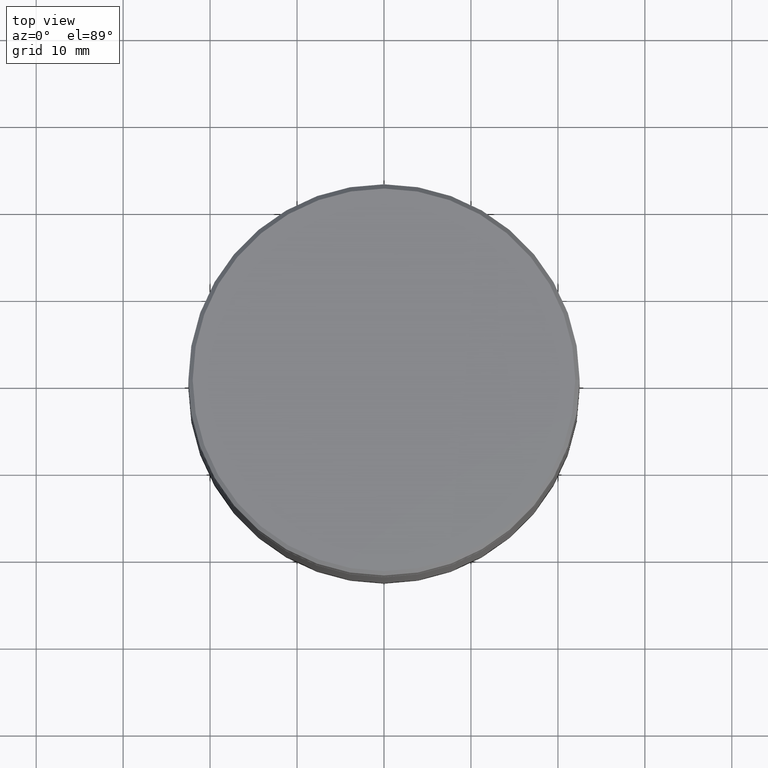
[diagram: clean part render]
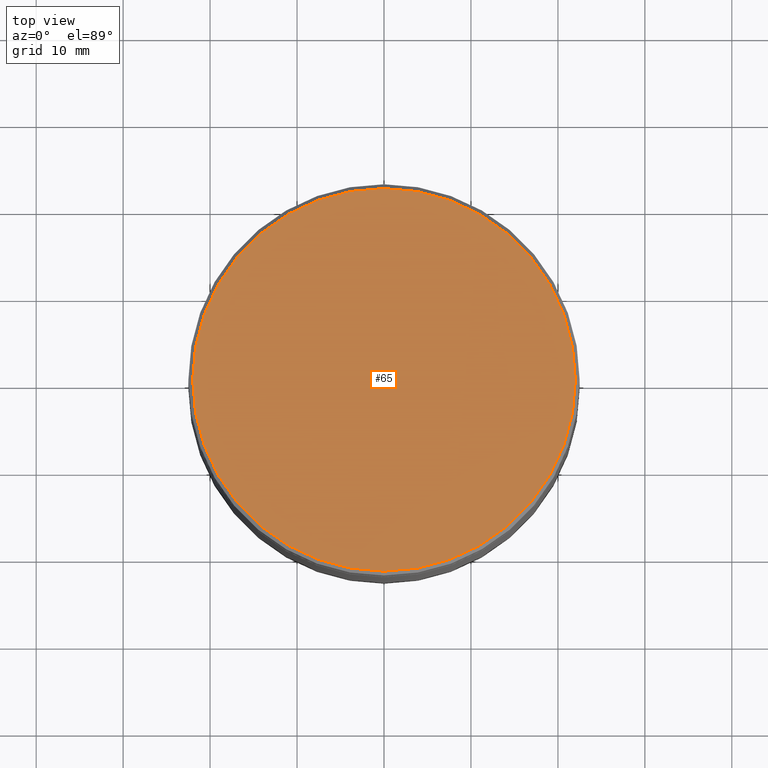
[diagram: same view with one face highlighted and labeled with its STEP entity id]
A machine part, top view. The second image highlights one B-rep face of the part: STEP entity #65.
In plain terms, the highlighted planar face has unit normal (0, -0, 1).
Its self-contained STEP definition (entity closure, byte-faithful):
#13 = EDGE_CURVE ( 'NONE', #95, #340, #178, .T. ) ;
#38 = CARTESIAN_POINT ( 'NONE',  ( 0.000000000000000000, 0.000000000000000000, 0.000000000000000000 ) ) ;
#65 = ADVANCED_FACE ( 'NONE', ( #524 ), #300, .T. ) ;
#80 = DIRECTION ( 'NONE',  ( -0.000000000000000000, -0.000000000000000000, 1.000000000000000000 ) ) ;
#95 = VERTEX_POINT ( 'NONE', #376 ) ;
#125 = EDGE_CURVE ( 'NONE', #340, #95, #167, .T. ) ;
#167 = CIRCLE ( 'NONE', #335, 21.99999999999998579 ) ;
#178 = CIRCLE ( 'NONE', #228, 21.99999999999998579 ) ;
#201 = DIRECTION ( 'NONE',  ( 1.000000000000000000, 0.000000000000000000, 0.000000000000000000 ) ) ;
#208 = DIRECTION ( 'NONE',  ( 1.000000000000000000, 0.000000000000000000, 0.000000000000000000 ) ) ;
#211 = CARTESIAN_POINT ( 'NONE',  ( 21.99999999999998579, 2.724839128102860202E-15, 0.000000000000000000 ) ) ;
#228 = AXIS2_PLACEMENT_3D ( 'NONE', #38, #80, #201 ) ;
#261 = DIRECTION ( 'NONE',  ( -0.000000000000000000, -0.000000000000000000, 1.000000000000000000 ) ) ;
#267 = DIRECTION ( 'NONE',  ( 1.000000000000000000, 0.000000000000000000, 0.000000000000000000 ) ) ;
#296 = ORIENTED_EDGE ( 'NONE', *, *, #125, .T. ) ;
#300 = PLANE ( 'NONE',  #439 ) ;
#310 = EDGE_LOOP ( 'NONE', ( #389, #296 ) ) ;
#335 = AXIS2_PLACEMENT_3D ( 'NONE', #336, #261, #267 ) ;
#336 = CARTESIAN_POINT ( 'NONE',  ( 0.000000000000000000, 0.000000000000000000, 0.000000000000000000 ) ) ;
#340 = VERTEX_POINT ( 'NONE', #211 ) ;
#376 = CARTESIAN_POINT ( 'NONE',  ( -21.99999999999998579, 0.000000000000000000, 0.000000000000000000 ) ) ;
#379 = CARTESIAN_POINT ( 'NONE',  ( 0.000000000000000000, 0.000000000000000000, 0.000000000000000000 ) ) ;
#389 = ORIENTED_EDGE ( 'NONE', *, *, #13, .T. ) ;
#439 = AXIS2_PLACEMENT_3D ( 'NONE', #379, #568, #208 ) ;
#524 = FACE_OUTER_BOUND ( 'NONE', #310, .T. ) ;
#568 = DIRECTION ( 'NONE',  ( 0.000000000000000000, -0.000000000000000000, 1.000000000000000000 ) ) ;